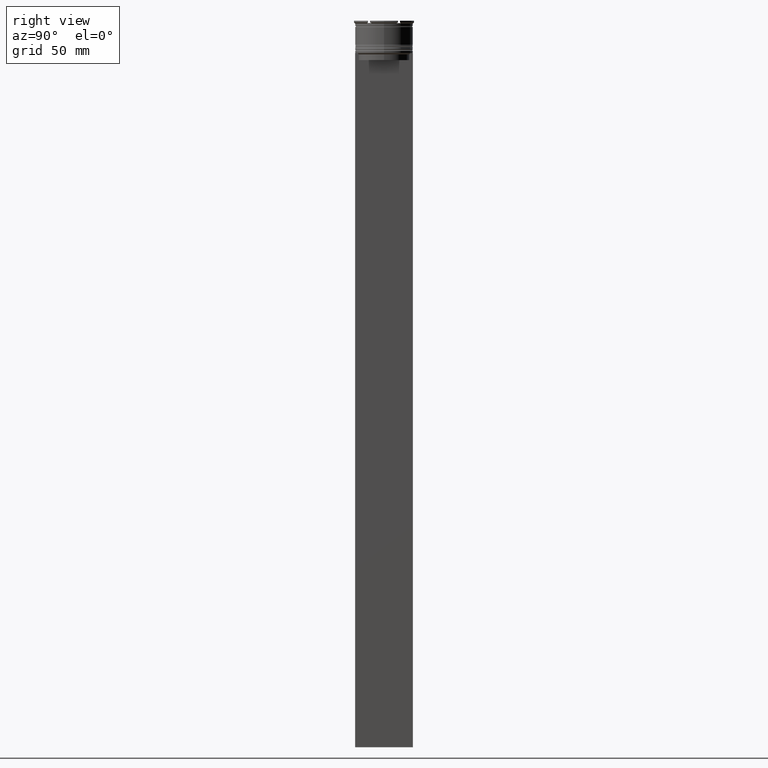
[diagram: clean part render]
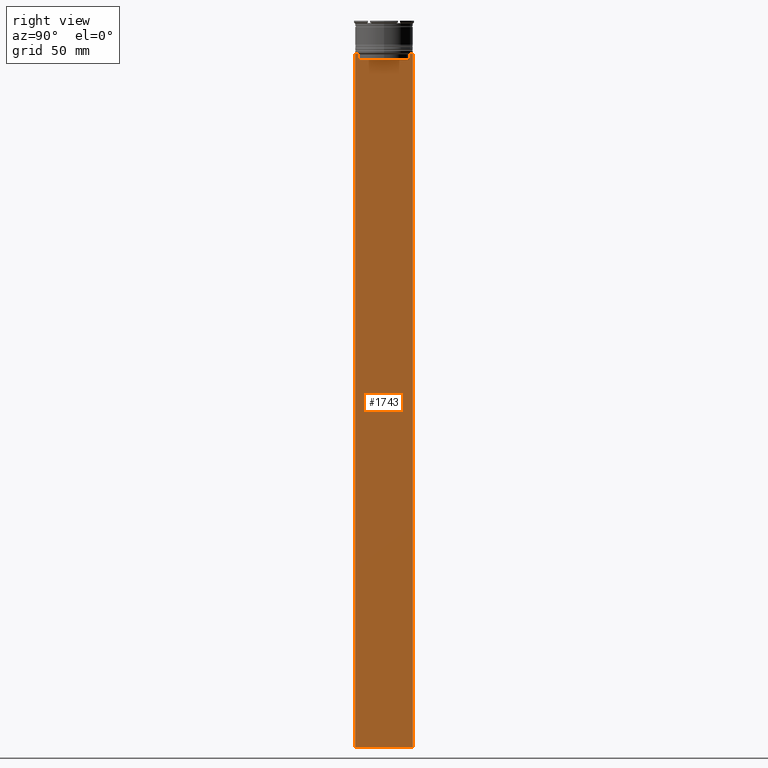
[diagram: same view with one face highlighted and labeled with its STEP entity id]
A machine part, right view. The second image highlights one B-rep face of the part: STEP entity #1743.
In plain terms, the highlighted planar face has unit normal (-1, 0, 0).
Its self-contained STEP definition (entity closure, byte-faithful):
#6 = DIRECTION ( 'NONE',  ( 0.000000000000000000, -1.000000000000000000, 0.000000000000000000 ) ) ;
#21 = VERTEX_POINT ( 'NONE', #1641 ) ;
#73 = CARTESIAN_POINT ( 'NONE',  ( 0.5000000000000000000, -11.38902980942626719, -14.00000000000000178 ) ) ;
#99 = CARTESIAN_POINT ( 'NONE',  ( 0.5000000000000000000, -10.88852607105296322, 0.000000000000000000 ) ) ;
#102 = CARTESIAN_POINT ( 'NONE',  ( 0.5000000000000000000, -12.49999999999999289, -314.0000000000000000 ) ) ;
#136 = CARTESIAN_POINT ( 'NONE',  ( 0.5000000000000000000, -10.88852607105296322, -14.50000000000000000 ) ) ;
#143 = VERTEX_POINT ( 'NONE', #381 ) ;
#172 = DIRECTION ( 'NONE',  ( -1.000000000000000000, 0.000000000000000000, 0.000000000000000000 ) ) ;
#188 = CARTESIAN_POINT ( 'NONE',  ( 0.5000000000000000000, 11.38902980942626719, -14.00000000000000178 ) ) ;
#196 = CARTESIAN_POINT ( 'NONE',  ( 0.5000000000000000000, -12.49999999999999289, -14.00000000000000178 ) ) ;
#287 = CARTESIAN_POINT ( 'NONE',  ( 0.5000000000000000000, -10.88852607105296144, -17.00000000000000000 ) ) ;
#337 = ORIENTED_EDGE ( 'NONE', *, *, #2823, .T. ) ;
#345 = VECTOR ( 'NONE', #1449, 1000.000000000000000 ) ;
#367 = LINE ( 'NONE', #2129, #345 ) ;
#381 = CARTESIAN_POINT ( 'NONE',  ( 0.5000000000000000000, 12.38991525394746773, -14.00000000000000178 ) ) ;
#393 = VECTOR ( 'NONE', #2299, 1000.000000000000000 ) ;
#413 = EDGE_CURVE ( 'NONE', #2413, #2227, #1436, .T. ) ;
#420 = LINE ( 'NONE', #2373, #1224 ) ;
#442 = ORIENTED_EDGE ( 'NONE', *, *, #595, .F. ) ;
#481 = EDGE_CURVE ( 'NONE', #2273, #860, #367, .T. ) ;
#519 = CARTESIAN_POINT ( 'NONE',  ( 0.5000000000000000000, 11.05536450345590538, -14.33333719074559376 ) ) ;
#534 = DIRECTION ( 'NONE',  ( -0.000000000000000000, -0.000000000000000000, 1.000000000000000000 ) ) ;
#566 = LINE ( 'NONE', #99, #1618 ) ;
#595 = EDGE_CURVE ( 'NONE', #600, #21, #420, .T. ) ;
#600 = VERTEX_POINT ( 'NONE', #1725 ) ;
#616 = DIRECTION ( 'NONE',  ( 0.000000000000000000, 0.000000000000000000, 1.000000000000000000 ) ) ;
#651 = DIRECTION ( 'NONE',  ( 0.000000000000000000, -1.000000000000000000, 0.000000000000000000 ) ) ;
#667 = CARTESIAN_POINT ( 'NONE',  ( 0.5000000000000000000, -12.49999999999999289, 11.01999200639360765 ) ) ;
#676 = VERTEX_POINT ( 'NONE', #1030 ) ;
#680 = FACE_OUTER_BOUND ( 'NONE', #700, .T. ) ;
#700 = EDGE_LOOP ( 'NONE', ( #1477, #1686, #2811, #1290, #2844, #1104, #1560, #1643, #2207, #337, #442, #1399 ) ) ;
#737 = EDGE_CURVE ( 'NONE', #2677, #2413, #1068, .T. ) ;
#811 = LINE ( 'NONE', #2813, #2039 ) ;
#839 = DIRECTION ( 'NONE',  ( 0.000000000000000000, 0.000000000000000000, -1.000000000000000000 ) ) ;
#847 = PLANE ( 'NONE',  #1613 ) ;
#860 = VERTEX_POINT ( 'NONE', #287 ) ;
#1004 = CARTESIAN_POINT ( 'NONE',  ( 0.5000000000000000000, 10.88852607105296144, -17.00000000000000000 ) ) ;
#1015 = DIRECTION ( 'NONE',  ( 0.000000000000000000, 0.000000000000000000, -1.000000000000000000 ) ) ;
#1030 = CARTESIAN_POINT ( 'NONE',  ( 0.5000000000000000000, -12.49999999999999289, -14.00000000000000178 ) ) ;
#1055 = EDGE_CURVE ( 'NONE', #1293, #1974, #2780, .T. ) ;
#1068 = B_SPLINE_CURVE_WITH_KNOTS ( 'NONE', 3,
 ( #1818, #1807, #2212, #2461 ),
 .UNSPECIFIED., .F., .F.,
 ( 4, 4 ),
 ( 0.05041323384703226551, 0.05112713601261605068 ),
 .UNSPECIFIED. ) ;
#1088 = CARTESIAN_POINT ( 'NONE',  ( 0.5000000000000000000, -12.49999999999999289, -14.00000000000000178 ) ) ;
#1104 = ORIENTED_EDGE ( 'NONE', *, *, #737, .T. ) ;
#1165 = LINE ( 'NONE', #2278, #1705 ) ;
#1224 = VECTOR ( 'NONE', #839, 1000.000000000000000 ) ;
#1290 = ORIENTED_EDGE ( 'NONE', *, *, #481, .T. ) ;
#1293 = VERTEX_POINT ( 'NONE', #188 ) ;
#1399 = ORIENTED_EDGE ( 'NONE', *, *, #2547, .T. ) ;
#1407 = CARTESIAN_POINT ( 'NONE',  ( 0.5000000000000000000, -12.49999999999999289, -14.00000000000000178 ) ) ;
#1436 = LINE ( 'NONE', #1407, #393 ) ;
#1449 = DIRECTION ( 'NONE',  ( 0.000000000000000000, -1.000000000000000000, 0.000000000000000000 ) ) ;
#1459 = LINE ( 'NONE', #196, #2640 ) ;
#1477 = ORIENTED_EDGE ( 'NONE', *, *, #2858, .T. ) ;
#1552 = CARTESIAN_POINT ( 'NONE',  ( 0.5000000000000000000, -12.49999999999999289, -314.0000000000000000 ) ) ;
#1560 = ORIENTED_EDGE ( 'NONE', *, *, #413, .T. ) ;
#1613 = AXIS2_PLACEMENT_3D ( 'NONE', #667, #172, #616 ) ;
#1618 = VECTOR ( 'NONE', #534, 1000.000000000000000 ) ;
#1641 = CARTESIAN_POINT ( 'NONE',  ( 0.5000000000000000000, 12.50000000000000711, -314.0000000000000000 ) ) ;
#1643 = ORIENTED_EDGE ( 'NONE', *, *, #2333, .T. ) ;
#1659 = CARTESIAN_POINT ( 'NONE',  ( 0.5000000000000000000, -12.38991525394746773, -14.00000000000000178 ) ) ;
#1686 = ORIENTED_EDGE ( 'NONE', *, *, #1055, .T. ) ;
#1705 = VECTOR ( 'NONE', #1813, 1000.000000000000000 ) ;
#1708 = VECTOR ( 'NONE', #2665, 1000.000000000000000 ) ;
#1725 = CARTESIAN_POINT ( 'NONE',  ( 0.5000000000000000000, 12.50000000000000711, -14.00000000000000178 ) ) ;
#1743 = ADVANCED_FACE ( 'NONE', ( #680 ), #847, .F. ) ;
#1807 = CARTESIAN_POINT ( 'NONE',  ( 0.5000000000000000000, -11.05536450423839234, -14.33333718996393102 ) ) ;
#1810 = CARTESIAN_POINT ( 'NONE',  ( 0.5000000000000000000, 10.88852607105296322, -14.50000000000000000 ) ) ;
#1813 = DIRECTION ( 'NONE',  ( 0.000000000000000000, 0.000000000000000000, -1.000000000000000000 ) ) ;
#1818 = CARTESIAN_POINT ( 'NONE',  ( 0.5000000000000000000, -10.88852607105296322, -14.50000000000000000 ) ) ;
#1919 = CARTESIAN_POINT ( 'NONE',  ( 0.5000000000000000000, -12.49999999999999289, -14.00000000000000178 ) ) ;
#1942 = VECTOR ( 'NONE', #6, 1000.000000000000000 ) ;
#1974 = VERTEX_POINT ( 'NONE', #1810 ) ;
#2039 = VECTOR ( 'NONE', #1015, 1000.000000000000000 ) ;
#2085 = EDGE_CURVE ( 'NONE', #676, #2147, #1165, .T. ) ;
#2095 = LINE ( 'NONE', #1919, #2542 ) ;
#2129 = CARTESIAN_POINT ( 'NONE',  ( 0.5000000000000000000, 10.90000000000000213, -17.00000000000000000 ) ) ;
#2141 = DIRECTION ( 'NONE',  ( 0.000000000000000000, -1.000000000000000000, 0.000000000000000000 ) ) ;
#2147 = VERTEX_POINT ( 'NONE', #102 ) ;
#2207 = ORIENTED_EDGE ( 'NONE', *, *, #2085, .T. ) ;
#2212 = CARTESIAN_POINT ( 'NONE',  ( 0.5000000000000000000, -11.22219891450652973, -14.16667035398018903 ) ) ;
#2227 = VERTEX_POINT ( 'NONE', #1659 ) ;
#2273 = VERTEX_POINT ( 'NONE', #1004 ) ;
#2278 = CARTESIAN_POINT ( 'NONE',  ( 0.5000000000000000000, -12.49999999999999289, 11.01999200639360765 ) ) ;
#2296 = CARTESIAN_POINT ( 'NONE',  ( 0.5000000000000000000, 11.22219891375843304, -14.16667035472756808 ) ) ;
#2299 = DIRECTION ( 'NONE',  ( 0.000000000000000000, -1.000000000000000000, 0.000000000000000000 ) ) ;
#2333 = EDGE_CURVE ( 'NONE', #2227, #676, #2623, .T. ) ;
#2373 = CARTESIAN_POINT ( 'NONE',  ( 0.5000000000000000000, 12.50000000000000711, 11.01999200639360765 ) ) ;
#2413 = VERTEX_POINT ( 'NONE', #73 ) ;
#2441 = LINE ( 'NONE', #1552, #1708 ) ;
#2461 = CARTESIAN_POINT ( 'NONE',  ( 0.5000000000000000000, -11.38902980942626719, -14.00000000000000178 ) ) ;
#2513 = CARTESIAN_POINT ( 'NONE',  ( 0.5000000000000000000, 11.38902980942626719, -14.00000000000000178 ) ) ;
#2542 = VECTOR ( 'NONE', #2141, 1000.000000000000000 ) ;
#2547 = EDGE_CURVE ( 'NONE', #600, #143, #2095, .T. ) ;
#2558 = EDGE_CURVE ( 'NONE', #860, #2677, #566, .T. ) ;
#2579 = EDGE_CURVE ( 'NONE', #1974, #2273, #811, .T. ) ;
#2623 = LINE ( 'NONE', #1088, #1942 ) ;
#2640 = VECTOR ( 'NONE', #651, 1000.000000000000000 ) ;
#2665 = DIRECTION ( 'NONE',  ( 0.000000000000000000, 1.000000000000000000, 0.000000000000000000 ) ) ;
#2677 = VERTEX_POINT ( 'NONE', #136 ) ;
#2712 = CARTESIAN_POINT ( 'NONE',  ( 0.5000000000000000000, 10.88852607105296322, -14.50000000000000000 ) ) ;
#2780 = B_SPLINE_CURVE_WITH_KNOTS ( 'NONE', 3,
 ( #2513, #2296, #519, #2712 ),
 .UNSPECIFIED., .F., .F.,
 ( 4, 4 ),
 ( 0.01935560801904634073, 0.02006307108468586772 ),
 .UNSPECIFIED. ) ;
#2811 = ORIENTED_EDGE ( 'NONE', *, *, #2579, .T. ) ;
#2813 = CARTESIAN_POINT ( 'NONE',  ( 0.5000000000000000000, 10.88852607105296322, 0.000000000000000000 ) ) ;
#2823 = EDGE_CURVE ( 'NONE', #2147, #21, #2441, .T. ) ;
#2844 = ORIENTED_EDGE ( 'NONE', *, *, #2558, .T. ) ;
#2858 = EDGE_CURVE ( 'NONE', #143, #1293, #1459, .T. ) ;